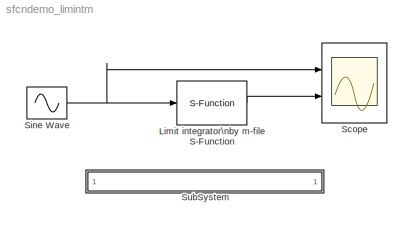
MODEL sfcndemo_limintm
KIND model
BLOCK [S-Function] Limit integrator\nby m-file S-Function
  FunctionName = limintm
  MaskCallbackString = ||
  MaskDescription = This is a M-file S-function which is a integrator with upper and lower bound.
  MaskDisplay = disp('1\\n-----\\ns')
  MaskEnableString = on,on,on
  MaskIconFrame = on
  MaskIconOpaque = on
  MaskIconRotate = none
  MaskIconUnits = autoscale
  MaskPromptString = Lower bound|Upper bound|Initial condition
  MaskStyleString = edit,edit,edit
  MaskTabNameString = ,,
  MaskToolTipString = on,on,on
  MaskTunableValueString = on,on,on
  MaskType = S-function: limintm
  MaskValueString = -5.0|5.0|0.0
  MaskVarAliasString = ,,
  MaskVariables = lb=@1;ub=@2;xi=@3;
  MaskVisibilityString = on,on,on
  Parameters = lb,ub,xi
  Ports = [1, 1]
BLOCK [Scope] Scope
  DataFormat = StructureWithTime
  NumInputPorts = 2
  Ports = [2]
  TimeRange = 10
  YMax = 5~6
  YMin = -5~-6
BLOCK [Sin] Sine Wave
  Amplitude = 5
  Ports = [0, 1]
  SampleTime = 0
BLOCK [SubSystem] SubSystem
  MaskDisplay = disp('matlabroot<path>');
  MaskIconFrame = on
  MaskIconOpaque = on
  MaskIconRotate = none
  MaskIconUnits = autoscale
  MinAlgLoopOccurrences = off
  OpenFcn = edit(fullfile(matlabroot,'toolbox','simulink','blocks','limintm.m'))
  Ports = []
  PropExecContextAcrossSSBoundary = on
  RTWSystemCode = Auto
  TreatAsAtomicUnit = off
LINE Limit integrator\nby m-file S-Function:1 -> Scope:2
NET Sine Wave:1 -> Limit integrator\nby m-file S-Function:1, Scope:1
note: NET lines group one-source signal fan-out (src -> all destinations, sorted); 1:1 wires keep LINE
note: 1 file-system path scrubbed to <path> (not preserved elsewhere — flat text is the only slx artifact)
